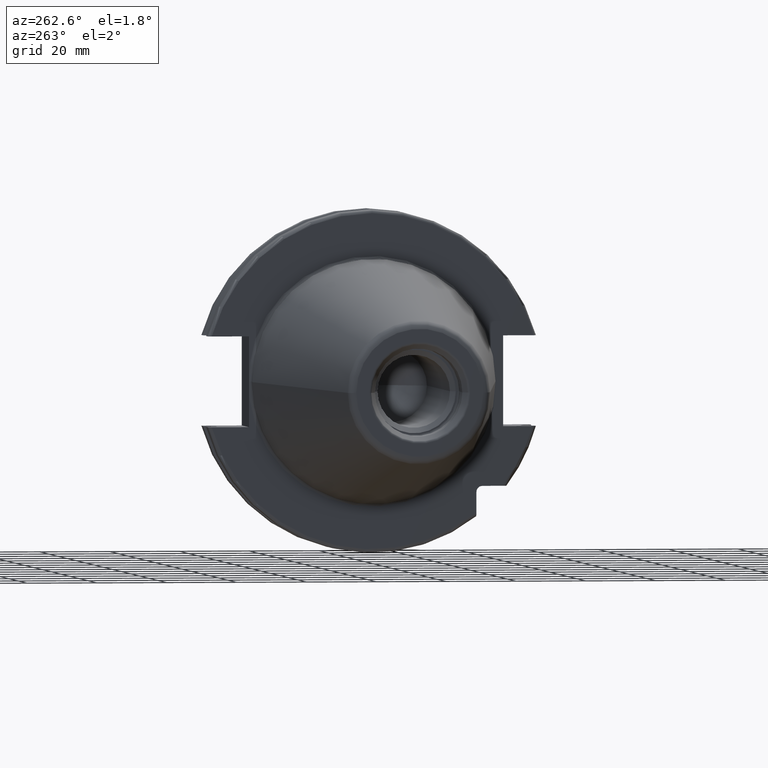
[diagram: clean part render]
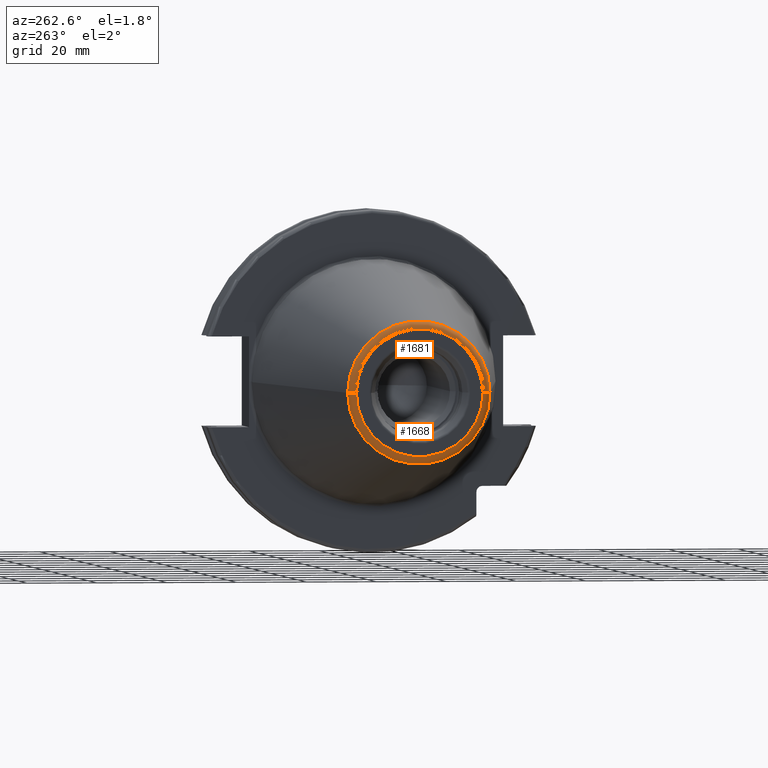
[diagram: same view with one multi-face feature highlighted, each face labeled with its STEP entity id]
A machine part, auxiliary view. The highlighted faces form ONE feature: a constant-radius fillet chain: 2 tangent blend faces with common blend radius 2.25 mm. The faces share edges in the B-rep.
Their STEP definitions:
[1] entity #1668 (Torus):
#2=CARTESIAN_POINT('',(-1.016E2,0.E0,0.E0));
#3=DIRECTION('',(-1.E0,0.E0,0.E0));
#4=DIRECTION('',(0.E0,1.E0,0.E0));
#5=AXIS2_PLACEMENT_3D('',#2,#3,#4);
#22=CARTESIAN_POINT('',(-9.935E1,1.816144700117E1,0.E0));
#23=DIRECTION('',(0.E0,0.E0,1.E0));
#24=DIRECTION('',(-1.443186691705E-1,9.895312636440E-1,0.E0));
#25=AXIS2_PLACEMENT_3D('',#22,#23,#24);
#27=CARTESIAN_POINT('',(-9.935E1,-1.816144700117E1,0.E0));
#28=DIRECTION('',(0.E0,0.E0,-1.E0));
#29=DIRECTION('',(-1.443186691705E-1,-9.895312636440E-1,0.E0));
#30=AXIS2_PLACEMENT_3D('',#27,#28,#29);
#32=CARTESIAN_POINT('',(-9.967471700563E1,0.E0,0.E0));
#33=DIRECTION('',(-1.E0,0.E0,0.E0));
#34=DIRECTION('',(0.E0,1.E0,0.E0));
#35=AXIS2_PLACEMENT_3D('',#32,#33,#34);
#1340=CARTESIAN_POINT('',(-9.967471700563E1,2.038789234437E1,0.E0));
#1341=CARTESIAN_POINT('',(-1.016E2,1.816144700117E1,0.E0));
#1342=VERTEX_POINT('',#1340);
#1343=VERTEX_POINT('',#1341);
#1344=CARTESIAN_POINT('',(-9.967471700563E1,-2.038789234437E1,0.E0));
#1345=CARTESIAN_POINT('',(-1.016E2,-1.816144700117E1,0.E0));
#1346=VERTEX_POINT('',#1344);
#1347=VERTEX_POINT('',#1345);
#1654=CARTESIAN_POINT('',(-9.935E1,0.E0,0.E0));
#1655=DIRECTION('',(1.E0,0.E0,0.E0));
#1656=DIRECTION('',(0.E0,-1.E0,0.E0));
#1657=AXIS2_PLACEMENT_3D('',#1654,#1655,#1656);
#1658=TOROIDAL_SURFACE('',#1657,1.816144700117E1,2.25E0);
#1660=ORIENTED_EDGE('',*,*,#1659,.T.);
#1661=ORIENTED_EDGE('',*,*,#1641,.T.);
#1663=ORIENTED_EDGE('',*,*,#1662,.F.);
#1665=ORIENTED_EDGE('',*,*,#1664,.F.);
#1666=EDGE_LOOP('',(#1660,#1661,#1663,#1665));
#1667=FACE_OUTER_BOUND('',#1666,.F.);
#1668=ADVANCED_FACE('',(#1667),#1658,.T.);
#6=CIRCLE('',#5,1.816144700117E1);
#26=CIRCLE('',#25,2.25E0);
#31=CIRCLE('',#30,2.25E0);
#36=CIRCLE('',#35,2.038789234437E1);
#1641=EDGE_CURVE('',#1343,#1347,#6,.T.);
#1659=EDGE_CURVE('',#1342,#1343,#26,.T.);
#1662=EDGE_CURVE('',#1346,#1347,#31,.T.);
#1664=EDGE_CURVE('',#1342,#1346,#36,.T.);
[2] entity #1681 (Torus):
#7=CARTESIAN_POINT('',(-1.016E2,0.E0,0.E0));
#8=DIRECTION('',(1.E0,0.E0,0.E0));
#9=DIRECTION('',(0.E0,1.E0,0.E0));
#10=AXIS2_PLACEMENT_3D('',#7,#8,#9);
#22=CARTESIAN_POINT('',(-9.935E1,1.816144700117E1,0.E0));
#23=DIRECTION('',(0.E0,0.E0,1.E0));
#24=DIRECTION('',(-1.443186691705E-1,9.895312636440E-1,0.E0));
#25=AXIS2_PLACEMENT_3D('',#22,#23,#24);
#27=CARTESIAN_POINT('',(-9.935E1,-1.816144700117E1,0.E0));
#28=DIRECTION('',(0.E0,0.E0,-1.E0));
#29=DIRECTION('',(-1.443186691705E-1,-9.895312636440E-1,0.E0));
#30=AXIS2_PLACEMENT_3D('',#27,#28,#29);
#37=CARTESIAN_POINT('',(-9.967471700563E1,0.E0,0.E0));
#38=DIRECTION('',(1.E0,0.E0,0.E0));
#39=DIRECTION('',(0.E0,1.E0,0.E0));
#40=AXIS2_PLACEMENT_3D('',#37,#38,#39);
#1340=CARTESIAN_POINT('',(-9.967471700563E1,2.038789234437E1,0.E0));
#1341=CARTESIAN_POINT('',(-1.016E2,1.816144700117E1,0.E0));
#1342=VERTEX_POINT('',#1340);
#1343=VERTEX_POINT('',#1341);
#1344=CARTESIAN_POINT('',(-9.967471700563E1,-2.038789234437E1,0.E0));
#1345=CARTESIAN_POINT('',(-1.016E2,-1.816144700117E1,0.E0));
#1346=VERTEX_POINT('',#1344);
#1347=VERTEX_POINT('',#1345);
#1669=CARTESIAN_POINT('',(-9.935E1,0.E0,0.E0));
#1670=DIRECTION('',(1.E0,0.E0,0.E0));
#1671=DIRECTION('',(0.E0,-1.E0,0.E0));
#1672=AXIS2_PLACEMENT_3D('',#1669,#1670,#1671);
#1673=TOROIDAL_SURFACE('',#1672,1.816144700117E1,2.25E0);
#1674=ORIENTED_EDGE('',*,*,#1659,.F.);
#1676=ORIENTED_EDGE('',*,*,#1675,.T.);
#1677=ORIENTED_EDGE('',*,*,#1662,.T.);
#1678=ORIENTED_EDGE('',*,*,#1643,.F.);
#1679=EDGE_LOOP('',(#1674,#1676,#1677,#1678));
#1680=FACE_OUTER_BOUND('',#1679,.F.);
#1681=ADVANCED_FACE('',(#1680),#1673,.T.);
#11=CIRCLE('',#10,1.816144700117E1);
#26=CIRCLE('',#25,2.25E0);
#31=CIRCLE('',#30,2.25E0);
#41=CIRCLE('',#40,2.038789234437E1);
#1643=EDGE_CURVE('',#1343,#1347,#11,.T.);
#1659=EDGE_CURVE('',#1342,#1343,#26,.T.);
#1662=EDGE_CURVE('',#1346,#1347,#31,.T.);
#1675=EDGE_CURVE('',#1342,#1346,#41,.T.);